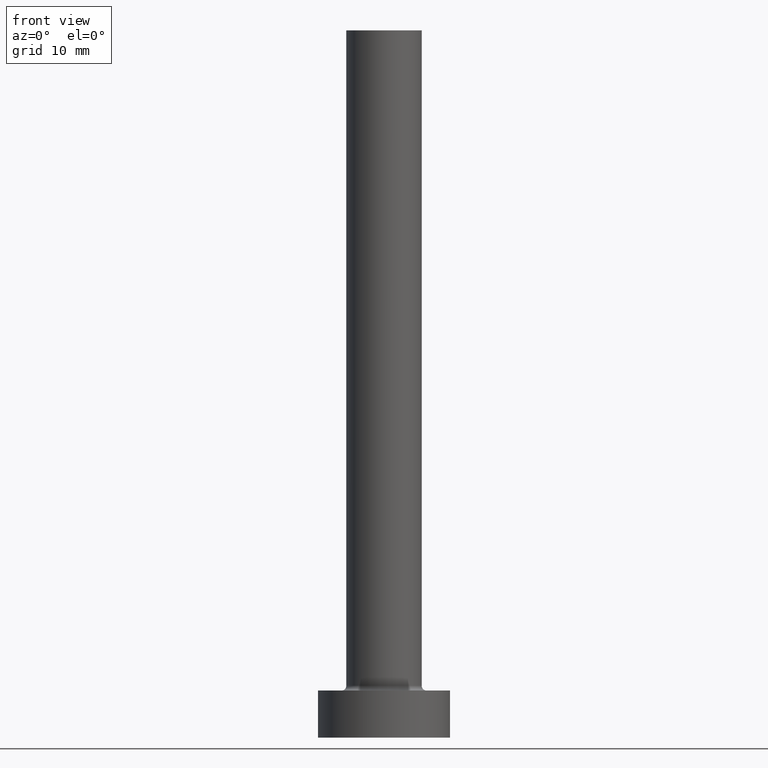
[diagram: clean part render]
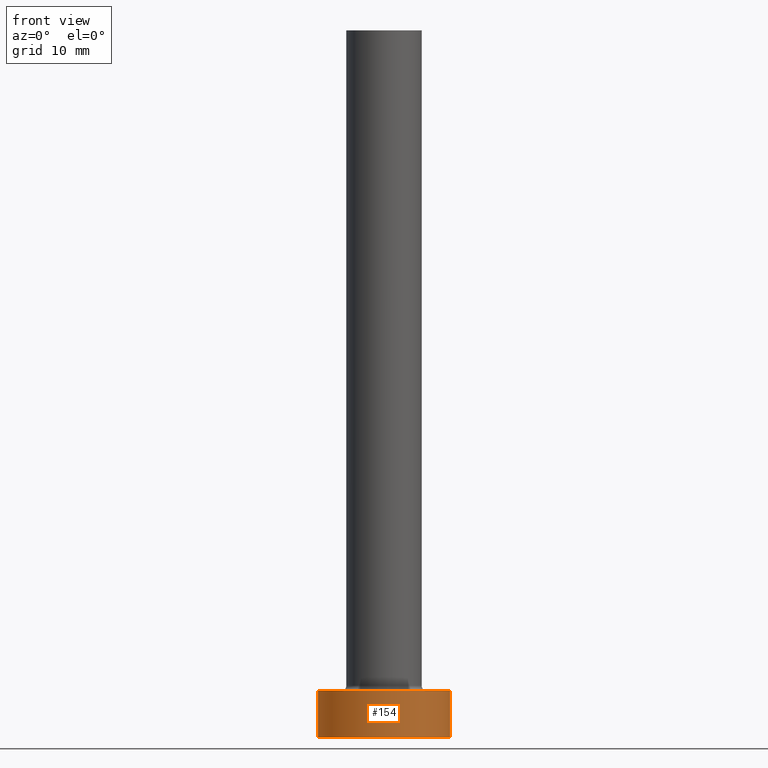
[diagram: same view with one face highlighted and labeled with its STEP entity id]
A machine part, front view. The second image highlights one B-rep face of the part: STEP entity #154.
In plain terms, the highlighted cylindrical surface (partial cylindrical patch) has radius 7 mm, axis along (-0, -0, -1).
Its self-contained STEP definition (entity closure, byte-faithful):
#4 = FACE_OUTER_BOUND ( 'NONE', #147, .T. ) ;
#25 = DIRECTION ( 'NONE',  ( -0.000000000000000000, -0.000000000000000000, -1.000000000000000000 ) ) ;
#38 = DIRECTION ( 'NONE',  ( 0.000000000000000000, 0.000000000000000000, 1.000000000000000000 ) ) ;
#39 = VERTEX_POINT ( 'NONE', #378 ) ;
#45 = DIRECTION ( 'NONE',  ( 1.000000000000000000, 0.000000000000000000, 0.000000000000000000 ) ) ;
#68 = CARTESIAN_POINT ( 'NONE',  ( -7.000000000000000000, 0.000000000000000000, 5.000000000000000000 ) ) ;
#72 = ORIENTED_EDGE ( 'NONE', *, *, #428, .T. ) ;
#84 = EDGE_CURVE ( 'NONE', #39, #256, #268, .T. ) ;
#107 = CARTESIAN_POINT ( 'NONE',  ( 0.000000000000000000, 0.000000000000000000, 5.000000000000000000 ) ) ;
#119 = CIRCLE ( 'NONE', #379, 7.000000000000000000 ) ;
#134 = CARTESIAN_POINT ( 'NONE',  ( -7.000000000000000000, 0.000000000000000000, 5.000000000000000000 ) ) ;
#147 = EDGE_LOOP ( 'NONE', ( #369, #367, #72, #393 ) ) ;
#154 = ADVANCED_FACE ( 'NONE', ( #4 ), #227, .T. ) ;
#160 = CARTESIAN_POINT ( 'NONE',  ( 7.000000000000000000, 8.572527594031473190E-16, 5.000000000000000000 ) ) ;
#161 = DIRECTION ( 'NONE',  ( 1.000000000000000000, 0.000000000000000000, 0.000000000000000000 ) ) ;
#175 = EDGE_CURVE ( 'NONE', #382, #39, #221, .T. ) ;
#216 = VERTEX_POINT ( 'NONE', #279 ) ;
#221 = CIRCLE ( 'NONE', #411, 7.000000000000000000 ) ;
#227 = CYLINDRICAL_SURFACE ( 'NONE', #424, 7.000000000000000000 ) ;
#254 = CARTESIAN_POINT ( 'NONE',  ( 7.000000000000000000, 8.572527594031473190E-16, 0.000000000000000000 ) ) ;
#256 = VERTEX_POINT ( 'NONE', #254 ) ;
#268 = LINE ( 'NONE', #160, #432 ) ;
#279 = CARTESIAN_POINT ( 'NONE',  ( -7.000000000000000000, 0.000000000000000000, 0.000000000000000000 ) ) ;
#281 = VECTOR ( 'NONE', #25, 1000.000000000000000 ) ;
#295 = DIRECTION ( 'NONE',  ( 0.000000000000000000, 0.000000000000000000, 1.000000000000000000 ) ) ;
#332 = CARTESIAN_POINT ( 'NONE',  ( 0.000000000000000000, 0.000000000000000000, 0.000000000000000000 ) ) ;
#335 = EDGE_CURVE ( 'NONE', #216, #256, #119, .T. ) ;
#366 = DIRECTION ( 'NONE',  ( -1.000000000000000000, 0.000000000000000000, 0.000000000000000000 ) ) ;
#367 = ORIENTED_EDGE ( 'NONE', *, *, #175, .F. ) ;
#369 = ORIENTED_EDGE ( 'NONE', *, *, #84, .F. ) ;
#378 = CARTESIAN_POINT ( 'NONE',  ( 7.000000000000000000, 8.572527594031473190E-16, 5.000000000000000000 ) ) ;
#379 = AXIS2_PLACEMENT_3D ( 'NONE', #332, #295, #161 ) ;
#382 = VERTEX_POINT ( 'NONE', #134 ) ;
#388 = LINE ( 'NONE', #68, #281 ) ;
#393 = ORIENTED_EDGE ( 'NONE', *, *, #335, .T. ) ;
#404 = CARTESIAN_POINT ( 'NONE',  ( 0.000000000000000000, 0.000000000000000000, 5.000000000000000000 ) ) ;
#411 = AXIS2_PLACEMENT_3D ( 'NONE', #404, #38, #45 ) ;
#420 = DIRECTION ( 'NONE',  ( -0.000000000000000000, -0.000000000000000000, -1.000000000000000000 ) ) ;
#424 = AXIS2_PLACEMENT_3D ( 'NONE', #107, #439, #366 ) ;
#428 = EDGE_CURVE ( 'NONE', #382, #216, #388, .T. ) ;
#432 = VECTOR ( 'NONE', #420, 1000.000000000000000 ) ;
#439 = DIRECTION ( 'NONE',  ( -0.000000000000000000, -0.000000000000000000, -1.000000000000000000 ) ) ;